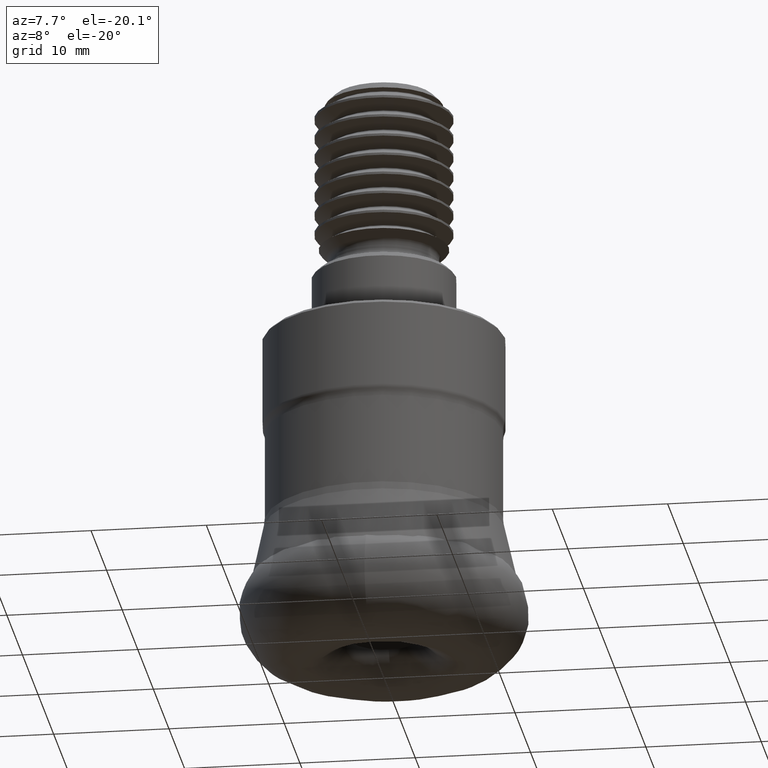
[diagram: clean part render]
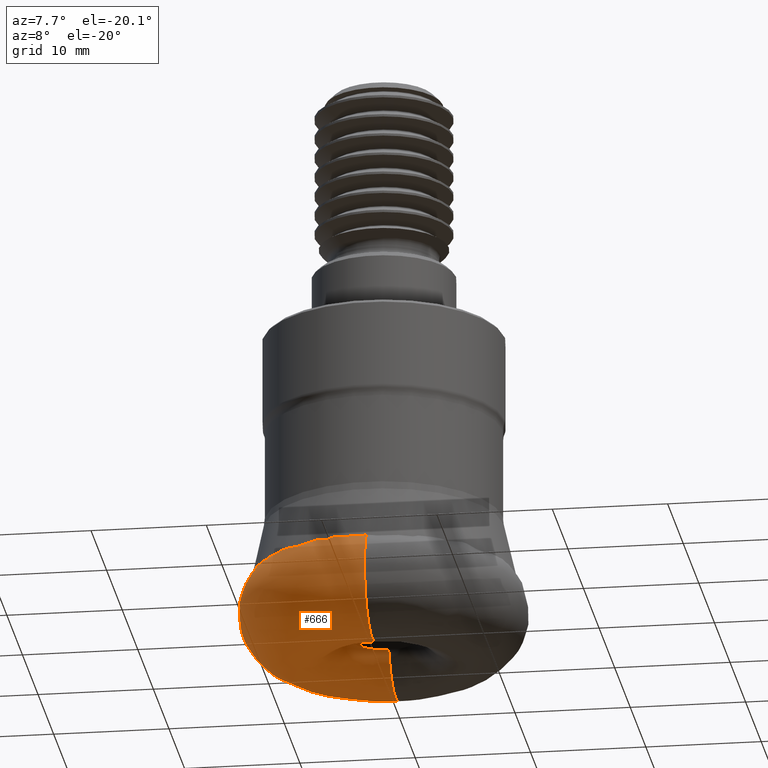
[diagram: same view with one face highlighted and labeled with its STEP entity id]
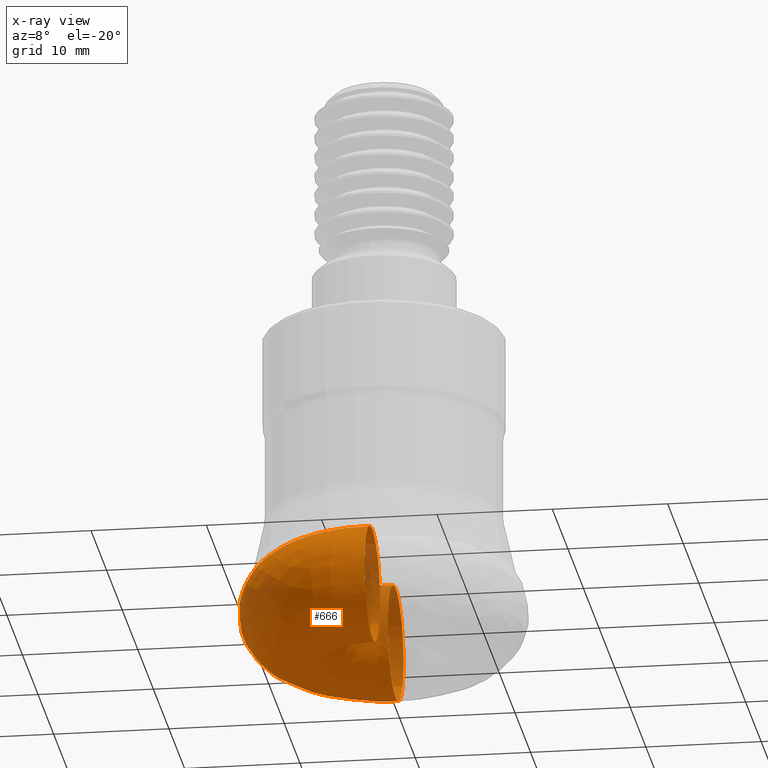
[diagram: x-ray of the same camera — body ghosted, the highlighted face saturated]
A machine part, auxiliary view. The second image highlights one B-rep face of the part: STEP entity #666.
The next image is the same camera in x-ray: the body ghosted, the highlighted face saturated — about 13% of this face is hidden behind the body in this view.
In plain terms, the highlighted face is a freeform B-spline surface patch.
Its self-contained STEP definition (entity closure, byte-faithful):
#20 = CARTESIAN_POINT ( 'NONE',  ( -3.330703706074874600E-015, 7.500077984780178400, -0.009164402119928232600 ) ) ;
#57 = CARTESIAN_POINT ( 'NONE',  ( -4.080457289410783800E-015, 9.188372964045830900, -0.1968408267578138400 ) ) ;
#71 = CARTESIAN_POINT ( 'NONE',  ( -2.423851349136132500E-015, 5.458028016385474900, -0.3023040473065031200 ) ) ;
#133 = CARTESIAN_POINT ( 'NONE',  ( 2.797312247766935100E-014, -4.005910351927866500, -8.621156315112525400 ) ) ;
#140 = CARTESIAN_POINT ( 'NONE',  ( -22.72718775901994100, 11.36359387950988200, -8.301157740592753200 ) ) ;
#148 = CARTESIAN_POINT ( 'NONE',  ( -8.205845332247083200, -4.102922666123586000, -1.258575001495027200 ) ) ;
#156 = ORIENTED_EDGE ( 'NONE', *, *, #356, .F. ) ;
#157 = CARTESIAN_POINT ( 'NONE',  ( -20.29254495474596400, -10.14627247737309200, -9.319955384866840800 ) ) ;
#164 = CARTESIAN_POINT ( 'NONE',  ( -3.918317280374558900E-015, 8.823266121907131800, -9.875378549908415200 ) ) ;
#165 = CARTESIAN_POINT ( 'NONE',  ( 7.085104202713067900E-014, -10.14627247737295000, -9.319955384866842600 ) ) ;
#209 = CARTESIAN_POINT ( 'NONE',  ( -2.748389104215336000E-014, 3.935849625829572300, -1.463454782935172900 ) ) ;
#213 = ORIENTED_EDGE ( 'NONE', *, *, #508, .T. ) ;
#235 = CARTESIAN_POINT ( 'NONE',  ( -5.104562449148895100E-014, 7.310023960832968000, -10.11035027655898800 ) ) ;
#236 = CARTESIAN_POINT ( 'NONE',  ( -5.237276464745644200E-014, 7.500077984780183700, -0.009164402119928489300 ) ) ;
#245 = CARTESIAN_POINT ( 'NONE',  ( 2.323060321832751800E-014, -3.326754601246808100, -7.795097375808933500 ) ) ;
#260 = CARTESIAN_POINT ( 'NONE',  ( 5.237276464745640400E-014, -7.500077984780178400, -0.009164402119928232600 ) ) ;
#292 = CARTESIAN_POINT ( 'NONE',  ( -1.822063684874709200E-015, 4.102922666123529200, -1.258575001495027000 ) ) ;
#298 = CARTESIAN_POINT ( 'NONE',  ( -24.53189196983349900, -12.26594598491688400, -6.811869205661909500 ) ) ;
#313 = CARTESIAN_POINT ( 'NONE',  ( -4.808596379259979000E-015, 10.82799643090517900, -1.108030076883949900 ) ) ;
#316 = CARTESIAN_POINT ( 'NONE',  ( 8.565264301918911500E-014, -12.26594598491671200, -6.811869205661909500 ) ) ;
#325 = CARTESIAN_POINT ( 'NONE',  ( 7.935155194500167400E-014, -11.36359387950989200, -8.301157740592751500 ) ) ;
#335 = CARTESIAN_POINT ( 'NONE',  ( -3.330703706074874600E-015, 7.500077984780178400, -0.009164402119928232600 ) ) ;
#347 = CARTESIAN_POINT ( 'NONE',  ( 1.732146959325829300E-014, -2.480533033436974000, -5.025129972843883400 ) ) ;
#356 = EDGE_CURVE ( 'NONE', #1202, #1202, #1867, .T. ) ;
#409 = CARTESIAN_POINT ( 'NONE',  ( 5.237276464745640400E-014, -7.500077984780178400, -0.009164402119928232600 ) ) ;
#427 = CARTESIAN_POINT ( 'NONE',  ( -5.237276464745644200E-014, 7.500077984780183700, -0.009164402119928489300 ) ) ;
#429 = CARTESIAN_POINT ( 'NONE',  ( -7.084770207923276600E-014, 10.14579417782416500, -0.6797048844541228000 ) ) ;
#433 = CARTESIAN_POINT ( 'NONE',  ( -1.732175717907286300E-014, 2.480574217362457600, -4.977240522939125000 ) ) ;
#441 = CARTESIAN_POINT ( 'NONE',  ( -9.880145221068721300, -4.940072610534414800, -9.347304805283343400 ) ) ;
#477 = CARTESIAN_POINT ( 'NONE',  ( 6.161253802457114900E-014, -8.823266121907131800, -9.875378549908415200 ) ) ;
#481 = CARTESIAN_POINT ( 'NONE',  ( -14.93641331905475600, 7.468206659527319300, -10.04963469629000400 ) ) ;
#489 = CARTESIAN_POINT ( 'NONE',  ( -8.011820703855788000, 4.005910351927862900, -8.621156315112527200 ) ) ;
#500 = CARTESIAN_POINT ( 'NONE',  ( 2.323060321832751800E-014, -3.326754601246808100, -7.795097375808933500 ) ) ;
#508 = EDGE_CURVE ( 'NONE', #1462, #1462, #1971, .T. ) ;
#525 = CARTESIAN_POINT ( 'NONE',  ( 6.416206547659357400E-014, -9.188372964045830900, -0.1968408267578138400 ) ) ;
#559 = CARTESIAN_POINT ( 'NONE',  ( 1.996034557826833200E-014, -2.858435094039767600, -6.921325995203225100 ) ) ;
#582 = CARTESIAN_POINT ( 'NONE',  ( -1.994933634677373600E-014, 2.856858509429087300, -3.082692807583340000 ) ) ;
#604 = CARTESIAN_POINT ( 'NONE',  ( 4.294234794166950200E-014, -6.149588637912927400, -9.867359996092027100 ) ) ;
#613 = CARTESIAN_POINT ( 'NONE',  ( -5.716870188079553800, -2.858435094039807100, -6.921325995203224200 ) ) ;
#634 = CARTESIAN_POINT ( 'NONE',  ( -15.00015596956040500, -7.500077984780282300, -0.009164402119928232600 ) ) ;
#639 = CARTESIAN_POINT ( 'NONE',  ( 8.824113566181951600E-014, -12.63663286412656600, -4.853953940152148800 ) ) ;
#651 = CARTESIAN_POINT ( 'NONE',  ( 3.811320593218577900E-014, -5.458028016385474900, -0.3023040473065031200 ) ) ;
#661 = CARTESIAN_POINT ( 'NONE',  ( 2.865055584697362900E-014, -4.102922666123529200, -1.258575001495027000 ) ) ;
#666 = ADVANCED_FACE ( 'NONE', ( #720, #822 ), #1880, .F. ) ;
#675 = CARTESIAN_POINT ( 'NONE',  ( 5.613360426983182700E-014, -8.038651624074141500, -0.008578911802465234700 ) ) ;
#708 = CARTESIAN_POINT ( 'NONE',  ( 1.986802067630257900E-014, -2.845213642597563400, -3.105290082063039600 ) ) ;
#720 = FACE_OUTER_BOUND ( 'NONE', #1209, .T. ) ;
#721 = CARTESIAN_POINT ( 'NONE',  ( -6.414921594674129800E-014, 9.186532838236003000, -9.803780883662764000 ) ) ;
#755 = CARTESIAN_POINT ( 'NONE',  ( -2.730965959113675200E-015, 6.149588637912927400, -9.867359996092027100 ) ) ;
#756 = CARTESIAN_POINT ( 'NONE',  ( -8.480518454431260100E-014, 12.14458510788030300, -7.234615563619808400 ) ) ;
#762 = CARTESIAN_POINT ( 'NONE',  ( -3.852561503514751600E-014, 5.517087347216437000, -0.3849734482204369400 ) ) ;
#767 = CARTESIAN_POINT ( 'NONE',  ( -6.653509202493636600, -3.326754601246854300, -7.795097375808933500 ) ) ;
#780 = CARTESIAN_POINT ( 'NONE',  ( 1.796993258967177000E-014, -2.573396625345550200, -5.978426845597637900 ) ) ;
#784 = CARTESIAN_POINT ( 'NONE',  ( -24.53189196983359500, 12.26594598491670300, -6.811869205661909500 ) ) ;
#790 = CARTESIAN_POINT ( 'NONE',  ( -1.269400182319810200E-015, 2.858435094039767600, -6.921325995203225100 ) ) ;
#797 = CARTESIAN_POINT ( 'NONE',  ( -6.653509202493662400, 3.326754601246805000, -7.795097375808933500 ) ) ;
#805 = CARTESIAN_POINT ( 'NONE',  ( 5.237276464745640400E-014, -7.500077984780178400, -0.009164402119928232600 ) ) ;
#812 = CARTESIAN_POINT ( 'NONE',  ( -10.91605603277098500, -5.458028016385550400, -0.3023040473065031200 ) ) ;
#822 = FACE_OUTER_BOUND ( 'NONE', #1158, .T. ) ;
#850 = CARTESIAN_POINT ( 'NONE',  ( 2.797312247766935100E-014, -4.005910351927866500, -8.621156315112525400 ) ) ;
#868 = CARTESIAN_POINT ( 'NONE',  ( -8.565671164343640700E-014, 12.26652863506609500, -3.189311487728561500 ) ) ;
#888 = CARTESIAN_POINT ( 'NONE',  ( -21.65599286181050300, 10.82799643090516800, -1.108030076883949900 ) ) ;
#911 = CARTESIAN_POINT ( 'NONE',  ( 7.561149495113097100E-014, -10.82799643090517900, -1.108030076883949900 ) ) ;
#918 = CARTESIAN_POINT ( 'NONE',  ( -5.146793250691136900, 2.573396625345548500, -5.978426845597637900 ) ) ;
#920 = CARTESIAN_POINT ( 'NONE',  ( 8.824113566181951600E-014, -12.63663286412656600, -4.853953940152148800 ) ) ;
#935 = CARTESIAN_POINT ( 'NONE',  ( -20.29254495474603800, 10.14627247737294100, -9.319955384866840800 ) ) ;
#947 = CARTESIAN_POINT ( 'NONE',  ( -1.778981562917830900E-015, 4.005910351927866500, -8.621156315112525400 ) ) ;
#957 = CARTESIAN_POINT ( 'NONE',  ( -13.54088113665372500, -6.770440568326935500, -0.009957600322410203200 ) ) ;
#963 = CARTESIAN_POINT ( 'NONE',  ( 3.811320593218577900E-014, -5.458028016385474900, -0.3023040473065031200 ) ) ;
#970 = CARTESIAN_POINT ( 'NONE',  ( -17.64653224381438400, 8.823266121907122900, -9.875378549908415200 ) ) ;
#978 = CARTESIAN_POINT ( 'NONE',  ( -13.54088113665377900, 6.770440568326836100, -0.009957600322410203200 ) ) ;
#1022 = CARTESIAN_POINT ( 'NONE',  ( 4.727773380011933200E-014, -6.770440568326841400, -0.009957600322410203200 ) ) ;
#1034 = CARTESIAN_POINT ( 'NONE',  ( -3.262741459330203500E-014, 4.672431473472058400, -0.8515757461315349700 ) ) ;
#1041 = CARTESIAN_POINT ( 'NONE',  ( 7.561149495113097100E-014, -10.82799643090517900, -1.108030076883949900 ) ) ;
#1067 = CARTESIAN_POINT ( 'NONE',  ( -1.793051023710493900E-014, 2.567751120079884600, -5.949560791875614800 ) ) ;
#1073 = CARTESIAN_POINT ( 'NONE',  ( -5.393733738225085300E-015, 12.14560862680309200, -2.767463656299170800 ) ) ;
#1087 = CARTESIAN_POINT ( 'NONE',  ( 8.481233173875033700E-014, -12.14560862680309200, -2.767463656299170800 ) ) ;
#1109 = CARTESIAN_POINT ( 'NONE',  ( -5.046449427008553400E-015, 11.36359387950989200, -8.301157740592751500 ) ) ;
#1111 = CARTESIAN_POINT ( 'NONE',  ( -16.07730324814839700, 8.038651624074136100, -0.008578911802465233000 ) ) ;
#1119 = CARTESIAN_POINT ( 'NONE',  ( 4.294234794166950200E-014, -6.149588637912927400, -9.867359996092027100 ) ) ;
#1124 = CARTESIAN_POINT ( 'NONE',  ( -4.995416810384009500E-014, 7.153721193937685500, -0.009135782083590015400 ) ) ;
#1137 = CARTESIAN_POINT ( 'NONE',  ( -3.006679602325078200E-015, 6.770440568326841400, -0.009957600322410203200 ) ) ;
#1146 = CARTESIAN_POINT ( 'NONE',  ( -5.134819185527504700, -2.567409592763780300, -4.051824912555355600 ) ) ;
#1158 = EDGE_LOOP ( 'NONE', ( #156 ) ) ;
#1202 = VERTEX_POINT ( 'NONE', #1894 ) ;
#1207 = CARTESIAN_POINT ( 'NONE',  ( -24.29121725360626600, -12.14560862680326300, -2.767463656299170800 ) ) ;
#1209 = EDGE_LOOP ( 'NONE', ( #213 ) ) ;
#1216 = CARTESIAN_POINT ( 'NONE',  ( 2.865055584697362900E-014, -4.102922666123529200, -1.258575001495027000 ) ) ;
#1229 = CARTESIAN_POINT ( 'NONE',  ( 3.449634266442149900E-014, -4.940072610534345500, -9.347304805283341600 ) ) ;
#1262 = CARTESIAN_POINT ( 'NONE',  ( -4.961066066873963900, -2.480533033437008600, -5.025129972843883400 ) ) ;
#1269 = CARTESIAN_POINT ( 'NONE',  ( 5.237276464745640400E-014, -7.500077984780178400, -0.009164402119928232600 ) ) ;
#1272 = CARTESIAN_POINT ( 'NONE',  ( -6.643349808156538700, -3.321674904078305300, -2.212543924002863700 ) ) ;
#1279 = CARTESIAN_POINT ( 'NONE',  ( -10.91605603277102300, 5.458028016385469500, -0.3023040473065031200 ) ) ;
#1282 = CARTESIAN_POINT ( 'NONE',  ( -1.796569043594330600E-014, 2.572789124786795300, -4.024994874336277600 ) ) ;
#1304 = CARTESIAN_POINT ( 'NONE',  ( -24.29121725360635200, 12.14560862680308200, -2.767463656299170800 ) ) ;
#1316 = CARTESIAN_POINT ( 'NONE',  ( 4.727773380011933200E-014, -6.770440568326841400, -0.009957600322410203200 ) ) ;
#1328 = CARTESIAN_POINT ( 'NONE',  ( -4.521047115221975000E-014, 6.474396791019335900, -0.08015674171691360200 ) ) ;
#1355 = CARTESIAN_POINT ( 'NONE',  ( -15.00015596956040500, -7.500077984780282300, -0.009164402119928232600 ) ) ;
#1387 = CARTESIAN_POINT ( 'NONE',  ( 5.215020837272736000E-014, -7.468206659527327300, -10.04963469629000400 ) ) ;
#1390 = CARTESIAN_POINT ( 'NONE',  ( -16.07730324814833600, -8.038651624074255200, -0.008578911802465233000 ) ) ;
#1419 = CARTESIAN_POINT ( 'NONE',  ( -5.447174260505207600E-015, 12.26594598491671200, -6.811869205661909500 ) ) ;
#1422 = CARTESIAN_POINT ( 'NONE',  ( -1.987043875404301900E-014, 2.845559925092838500, -6.895507130279123800 ) ) ;
#1431 = CARTESIAN_POINT ( 'NONE',  ( 1.792812536460292300E-014, -2.567409592763744400, -4.051824912555354700 ) ) ;
#1438 = CARTESIAN_POINT ( 'NONE',  ( -3.569878447995010400E-015, 8.038651624074141500, -0.008578911802465234700 ) ) ;
#1441 = CARTESIAN_POINT ( 'NONE',  ( -25.27326572825321400, -12.63663286412674400, -4.853953940152148800 ) ) ;
#1450 = CARTESIAN_POINT ( 'NONE',  ( -14.93641331905470300, -7.468206659527431200, -10.04963469629000400 ) ) ;
#1454 = CARTESIAN_POINT ( 'NONE',  ( -8.205845332247115200, 4.102922666123525600, -1.258575001495027200 ) ) ;
#1462 = VERTEX_POINT ( 'NONE', #409 ) ;
#1466 = CARTESIAN_POINT ( 'NONE',  ( -25.27326572825331000, 12.63663286412655800, -4.853953940152148800 ) ) ;
#1477 = CARTESIAN_POINT ( 'NONE',  ( -1.101577954826005300E-015, 2.480533033436974000, -5.025129972843883400 ) ) ;
#1484 = CARTESIAN_POINT ( 'NONE',  ( -5.690427285195144500, -2.845213642597603300, -3.105290082063039600 ) ) ;
#1515 = CARTESIAN_POINT ( 'NONE',  ( -7.935357698521242100E-014, 11.36388387679388300, -1.699002531778220000 ) ) ;
#1523 = CARTESIAN_POINT ( 'NONE',  ( 8.565264301918911500E-014, -12.26594598491671200, -6.811869205661909500 ) ) ;
#1577 = CARTESIAN_POINT ( 'NONE',  ( -7.559998977418291400E-014, 10.82634882408281700, -8.893348194339395700 ) ) ;
#1582 = CARTESIAN_POINT ( 'NONE',  ( -17.64653224381432000, -8.823266121907254300, -9.875378549908415200 ) ) ;
#1596 = CARTESIAN_POINT ( 'NONE',  ( 7.935155194500167400E-014, -11.36359387950989200, -8.301157740592751500 ) ) ;
#1613 = CARTESIAN_POINT ( 'NONE',  ( -5.611792303795296600E-015, 12.63663286412656600, -4.853953940152148800 ) ) ;
#1616 = CARTESIAN_POINT ( 'NONE',  ( -1.263528678395771000E-015, 2.845213642597563400, -3.105290082063039600 ) ) ;
#1627 = CARTESIAN_POINT ( 'NONE',  ( -1.142817673980523600E-015, 2.573396625345550200, -5.978426845597637900 ) ) ;
#1645 = CARTESIAN_POINT ( 'NONE',  ( -2.193832942214135200E-015, 4.940072610534345500, -9.347304805283341600 ) ) ;
#1651 = CARTESIAN_POINT ( 'NONE',  ( -15.00015596956046200, 7.500077984780170400, -0.009164402119928232600 ) ) ;
#1672 = CARTESIAN_POINT ( 'NONE',  ( -3.811334659410584400E-014, 5.458048159973026600, -9.697466965223760800 ) ) ;
#1688 = CARTESIAN_POINT ( 'NONE',  ( -21.65599286181042900, -10.82799643090533000, -1.108030076883949900 ) ) ;
#1718 = CARTESIAN_POINT ( 'NONE',  ( -2.321050462414510200E-014, 3.323876368165791900, -2.209178514363264500 ) ) ;
#1737 = CARTESIAN_POINT ( 'NONE',  ( -15.00015596956046200, 7.500077984780170400, -0.009164402119928232600 ) ) ;
#1751 = CARTESIAN_POINT ( 'NONE',  ( -2.319835941423979500E-014, 3.322137104981110100, -7.788221888378447300 ) ) ;
#1758 = CARTESIAN_POINT ( 'NONE',  ( -4.505850127399994500E-015, 10.14627247737295000, -9.319955384866842600 ) ) ;
#1763 = CARTESIAN_POINT ( 'NONE',  ( -2.865496528112033300E-014, 4.103554122190276500, -8.741929999581655500 ) ) ;
#1767 = CARTESIAN_POINT ( 'NONE',  ( -1.140158897411920500E-015, 2.567409592763744400, -4.051824912555354700 ) ) ;
#1768 = CARTESIAN_POINT ( 'NONE',  ( -18.37674592809172200, -9.188372964045960600, -0.1968408267578138600 ) ) ;
#1769 = CARTESIAN_POINT ( 'NONE',  ( 1.986802067630257900E-014, -2.845213642597563400, -3.105290082063039600 ) ) ;
#1775 = CARTESIAN_POINT ( 'NONE',  ( -22.72718775901985600, -11.36359387951005000, -8.301157740592753200 ) ) ;
#1783 = CARTESIAN_POINT ( 'NONE',  ( -5.716870188079574300, 2.858435094039765400, -6.921325995203224200 ) ) ;
#1790 = CARTESIAN_POINT ( 'NONE',  ( -4.961066066873982500, 2.480533033436972200, -5.025129972843883400 ) ) ;
#1800 = CARTESIAN_POINT ( 'NONE',  ( 7.085104202713067900E-014, -10.14627247737295000, -9.319955384866842600 ) ) ;
#1808 = CARTESIAN_POINT ( 'NONE',  ( 1.796993258967177000E-014, -2.573396625345550200, -5.978426845597637900 ) ) ;
#1817 = CARTESIAN_POINT ( 'NONE',  ( 1.732146959325829300E-014, -2.480533033436974000, -5.025129972843883400 ) ) ;
#1819 = CARTESIAN_POINT ( 'NONE',  ( -8.824123683972927200E-014, 12.63664735337910900, -5.148079995656458700 ) ) ;
#1867 = B_SPLINE_CURVE_WITH_KNOTS ( 'NONE', 3,
 ( #236, #1124, #1328, #762, #1034, #209, #1718, #582, #1282, #433, #1067, #1422, #1751, #1763, #1672, #235, #721, #1577, #756, #1819, #868, #1515, #429, #2054, #1942, #427 ),
 .UNSPECIFIED., .T., .F.,
 ( 4, 1, 1, 1, 1, 1, 1, 1, 1, 1, 1, 1, 1, 1, 1, 1, 1, 1, 1, 1, 1, 1, 1, 4 ),
 ( 0.0000000000000000000, 0.03320394883883715600, 0.06516220103787766200, 0.09587428797656577500, 0.1253397804273764000, 0.1566471387144009500, 0.1879544872846255800, 0.2198983318124575500, 0.2505677222096027200, 0.2792981905221687500, 0.3132041225189032800, 0.3445497061412161100, 0.3758950549417949800, 0.4309753263760115500, 0.5006097235536065600, 0.5520401627210458400, 0.6107483177037161800, 0.6767028211823468100, 0.7498683893708825200, 0.8092330965371140600, 0.8639401200339874600, 0.9139774293117878300, 0.9593340368054635900, 1.000000000000000000 ),
 .UNSPECIFIED. ) ;
#1879 = CARTESIAN_POINT ( 'NONE',  ( 2.319513188258559300E-014, -3.321674904078259200, -2.212543924002863700 ) ) ;
#1880 =( BOUNDED_SURFACE ( )  B_SPLINE_SURFACE ( 3, 3, ( 
 ( #1269, #1355, #1737, #20 ),
 ( #1960, #1390, #1111, #1438 ),
 ( #525, #1768, #1883, #57 ),
 ( #1041, #1688, #888, #313 ),
 ( #2035, #1207, #1304, #1073 ),
 ( #920, #1441, #1466, #1613 ),
 ( #316, #298, #784, #1419 ),
 ( #325, #1775, #140, #1109 ),
 ( #1800, #157, #935, #1758 ),
 ( #477, #1582, #970, #164 ),
 ( #2126, #1450, #481, #2070 ),
 ( #1119, #1893, #2050, #755 ),
 ( #2102, #441, #2082, #1645 ),
 ( #133, #1922, #489, #947 ),
 ( #500, #767, #797, #1957 ),
 ( #2075, #613, #1783, #790 ),
 ( #1808, #1946, #918, #1627 ),
 ( #1817, #1262, #1790, #1477 ),
 ( #1929, #1146, #2066, #1767 ),
 ( #1769, #1484, #2096, #1616 ),
 ( #1975, #1272, #1937, #1949 ),
 ( #661, #148, #1454, #292 ),
 ( #963, #812, #1279, #71 ),
 ( #1316, #957, #978, #1137 ),
 ( #805, #634, #1651, #335 ) ),
 .UNSPECIFIED., .T., .F., .T. ) 
 B_SPLINE_SURFACE_WITH_KNOTS ( ( 4, 1, 1, 1, 1, 1, 1, 1, 1, 1, 1, 1, 1, 1, 1, 1, 1, 1, 1, 1, 1, 1, 4 ),
 ( 4, 4 ),
 ( 0.0000000000000000000, 0.05144569660963285000, 0.1101690522575406000, 0.1761387016063420100, 0.2493193641377958200, 0.3086578346807545300, 0.3633423621818930300, 0.4133609445763132300, 0.4587026199161775600, 0.4993574684259129400, 0.5432671842187452000, 0.5849645031604101500, 0.6244474677429808800, 0.6557697127749152500, 0.6870919461013733600, 0.7190929631206620700, 0.7497859340306085600, 0.7785550718868724500, 0.8125035524980357400, 0.8438346600878019500, 0.8751655327288211400, 0.9303034860541951100, 1.000000000000000000 ),
 ( 0.0000000000000000000, 1.000000000000000000 ),
 .UNSPECIFIED. ) 
 GEOMETRIC_REPRESENTATION_ITEM ( )  RATIONAL_B_SPLINE_SURFACE ( (
 ( 1.000000000000000000, 0.3333333333333311500, 0.3333333333333311500, 1.000000000000000000),
 ( 1.000000000000000000, 0.3333333333333311500, 0.3333333333333311500, 1.000000000000000000),
 ( 1.000000000000000000, 0.3333333333333311500, 0.3333333333333311500, 1.000000000000000000),
 ( 1.000000000000000000, 0.3333333333333311500, 0.3333333333333311500, 1.000000000000000000),
 ( 1.000000000000000000, 0.3333333333333311500, 0.3333333333333311500, 1.000000000000000000),
 ( 1.000000000000000000, 0.3333333333333311500, 0.3333333333333311500, 1.000000000000000000),
 ( 1.000000000000000000, 0.3333333333333311500, 0.3333333333333311500, 1.000000000000000000),
 ( 1.000000000000000000, 0.3333333333333311500, 0.3333333333333311500, 1.000000000000000000),
 ( 1.000000000000000000, 0.3333333333333311500, 0.3333333333333311500, 1.000000000000000000),
 ( 1.000000000000000000, 0.3333333333333311500, 0.3333333333333311500, 1.000000000000000000),
 ( 1.000000000000000000, 0.3333333333333311500, 0.3333333333333311500, 1.000000000000000000),
 ( 1.000000000000000000, 0.3333333333333311500, 0.3333333333333311500, 1.000000000000000000),
 ( 1.000000000000000000, 0.3333333333333311500, 0.3333333333333311500, 1.000000000000000000),
 ( 1.000000000000000000, 0.3333333333333311500, 0.3333333333333311500, 1.000000000000000000),
 ( 1.000000000000000000, 0.3333333333333311500, 0.3333333333333311500, 1.000000000000000000),
 ( 1.000000000000000000, 0.3333333333333311500, 0.3333333333333311500, 1.000000000000000000),
 ( 1.000000000000000000, 0.3333333333333311500, 0.3333333333333311500, 1.000000000000000000),
 ( 1.000000000000000000, 0.3333333333333311500, 0.3333333333333311500, 1.000000000000000000),
 ( 1.000000000000000000, 0.3333333333333311500, 0.3333333333333311500, 1.000000000000000000),
 ( 1.000000000000000000, 0.3333333333333311500, 0.3333333333333311500, 1.000000000000000000),
 ( 1.000000000000000000, 0.3333333333333311500, 0.3333333333333311500, 1.000000000000000000),
 ( 1.000000000000000000, 0.3333333333333311500, 0.3333333333333311500, 1.000000000000000000),
 ( 1.000000000000000000, 0.3333333333333311500, 0.3333333333333311500, 1.000000000000000000),
 ( 1.000000000000000000, 0.3333333333333311500, 0.3333333333333311500, 1.000000000000000000),
 ( 1.000000000000000000, 0.3333333333333311500, 0.3333333333333311500, 1.000000000000000000) ) ) 
 REPRESENTATION_ITEM ( '' )  SURFACE ( )  );
#1883 = CARTESIAN_POINT ( 'NONE',  ( -18.37674592809178600, 9.188372964045820300, -0.1968408267578138600 ) ) ;
#1893 = CARTESIAN_POINT ( 'NONE',  ( -12.29917727582589200, -6.149588637913012700, -9.867359996092028900 ) ) ;
#1894 = CARTESIAN_POINT ( 'NONE',  ( -5.237276464745644200E-014, 7.500077984780183700, -0.009164402119928489300 ) ) ;
#1922 = CARTESIAN_POINT ( 'NONE',  ( -8.011820703855759600, -4.005910351927923300, -8.621156315112527200 ) ) ;
#1929 = CARTESIAN_POINT ( 'NONE',  ( 1.792812536460292300E-014, -2.567409592763744400, -4.051824912555354700 ) ) ;
#1937 = CARTESIAN_POINT ( 'NONE',  ( -6.643349808156564500, 3.321674904078256100, -2.212543924002863700 ) ) ;
#1942 = CARTESIAN_POINT ( 'NONE',  ( -5.533489901594742000E-014, 7.924272485769904500, -0.009199454015412842100 ) ) ;
#1946 = CARTESIAN_POINT ( 'NONE',  ( -5.146793250691117400, -2.573396625345586200, -5.978426845597637900 ) ) ;
#1949 = CARTESIAN_POINT ( 'NONE',  ( -1.475119983530897200E-015, 3.321674904078259200, -2.212543924002863700 ) ) ;
#1957 = CARTESIAN_POINT ( 'NONE',  ( -1.477375822232753200E-015, 3.326754601246808100, -7.795097375808933500 ) ) ;
#1960 = CARTESIAN_POINT ( 'NONE',  ( 5.613360426983182700E-014, -8.038651624074141500, -0.008578911802465234700 ) ) ;
#1971 = B_SPLINE_CURVE_WITH_KNOTS ( 'NONE', 3,
 ( #2105, #1022, #651, #1216, #1879, #708, #1431, #347, #780, #559, #245, #850, #1229, #604, #1387, #2072, #165, #1596, #1523, #639, #1087, #911, #2138, #675, #260 ),
 .UNSPECIFIED., .T., .F.,
 ( 4, 1, 1, 1, 1, 1, 1, 1, 1, 1, 1, 1, 1, 1, 1, 1, 1, 1, 1, 1, 1, 1, 4 ),
 ( 0.0000000000000000000, 0.06969651394580489400, 0.1248344672711788600, 0.1561653399121980500, 0.1874964475019642600, 0.2214449281131275500, 0.2502140659693914400, 0.2809070368793379300, 0.3129080538986266400, 0.3442302872250847500, 0.3755525322570191200, 0.4150354968395898500, 0.4567328157812548000, 0.5006425315740870000, 0.5412973800838224400, 0.5866390554236867700, 0.6366576378181070300, 0.6913421653192455300, 0.7506806358622042400, 0.8238612983936579600, 0.8898309477424594100, 0.9485543033903671700, 1.000000000000000000 ),
 .UNSPECIFIED. ) ;
#1975 = CARTESIAN_POINT ( 'NONE',  ( 2.319513188258559300E-014, -3.321674904078259200, -2.212543924002863700 ) ) ;
#2035 = CARTESIAN_POINT ( 'NONE',  ( 8.481233173875033700E-014, -12.14560862680309200, -2.767463656299170800 ) ) ;
#2050 = CARTESIAN_POINT ( 'NONE',  ( -12.29917727582594000, 6.149588637912922100, -9.867359996092028900 ) ) ;
#2054 = CARTESIAN_POINT ( 'NONE',  ( -6.160529769565328800E-014, 8.822229265596700300, -0.1241915475170689300 ) ) ;
#2066 = CARTESIAN_POINT ( 'NONE',  ( -5.134819185527523400, 2.567409592763742600, -4.051824912555355600 ) ) ;
#2070 = CARTESIAN_POINT ( 'NONE',  ( -3.316549994426466000E-015, 7.468206659527327300, -10.04963469629000400 ) ) ;
#2072 = CARTESIAN_POINT ( 'NONE',  ( 6.161253802457114900E-014, -8.823266121907131800, -9.875378549908415200 ) ) ;
#2075 = CARTESIAN_POINT ( 'NONE',  ( 1.996034557826833200E-014, -2.858435094039767600, -6.921325995203225100 ) ) ;
#2082 = CARTESIAN_POINT ( 'NONE',  ( -9.880145221068758600, 4.940072610534341100, -9.347304805283343400 ) ) ;
#2096 = CARTESIAN_POINT ( 'NONE',  ( -5.690427285195165800, 2.845213642597560700, -3.105290082063039600 ) ) ;
#2102 = CARTESIAN_POINT ( 'NONE',  ( 3.449634266442149900E-014, -4.940072610534345500, -9.347304805283341600 ) ) ;
#2105 = CARTESIAN_POINT ( 'NONE',  ( 5.237276464745640400E-014, -7.500077984780178400, -0.009164402119928232600 ) ) ;
#2126 = CARTESIAN_POINT ( 'NONE',  ( 5.215020837272736000E-014, -7.468206659527327300, -10.04963469629000400 ) ) ;
#2138 = CARTESIAN_POINT ( 'NONE',  ( 6.416206547659357400E-014, -9.188372964045830900, -0.1968408267578138400 ) ) ;